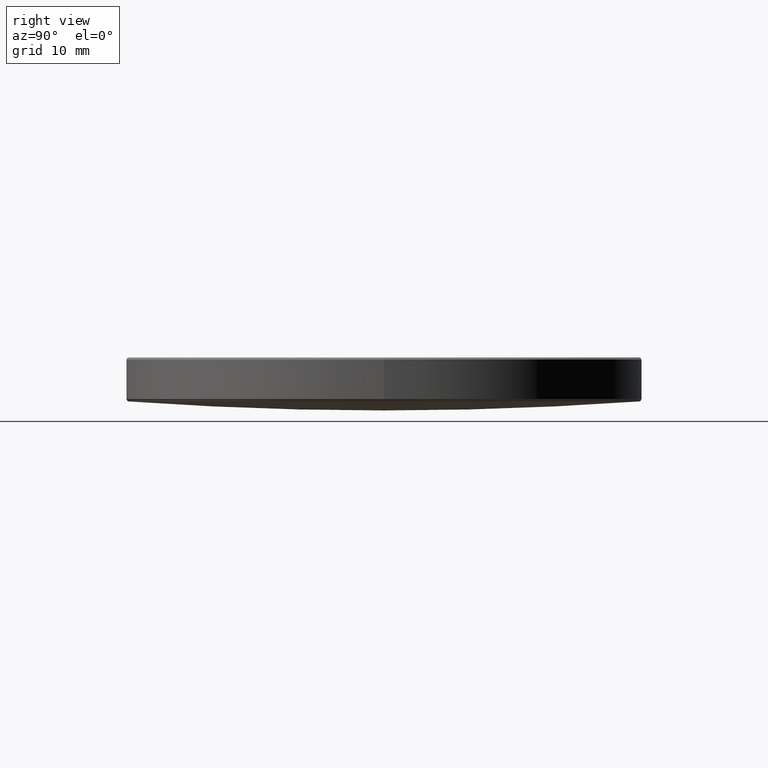
[diagram: clean part render]
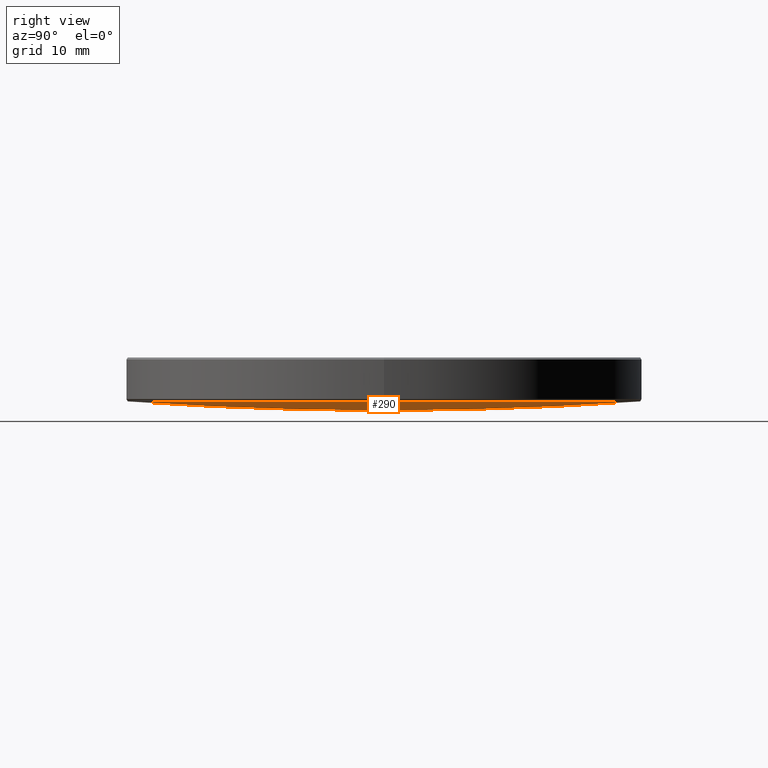
[diagram: same view with one face highlighted and labeled with its STEP entity id]
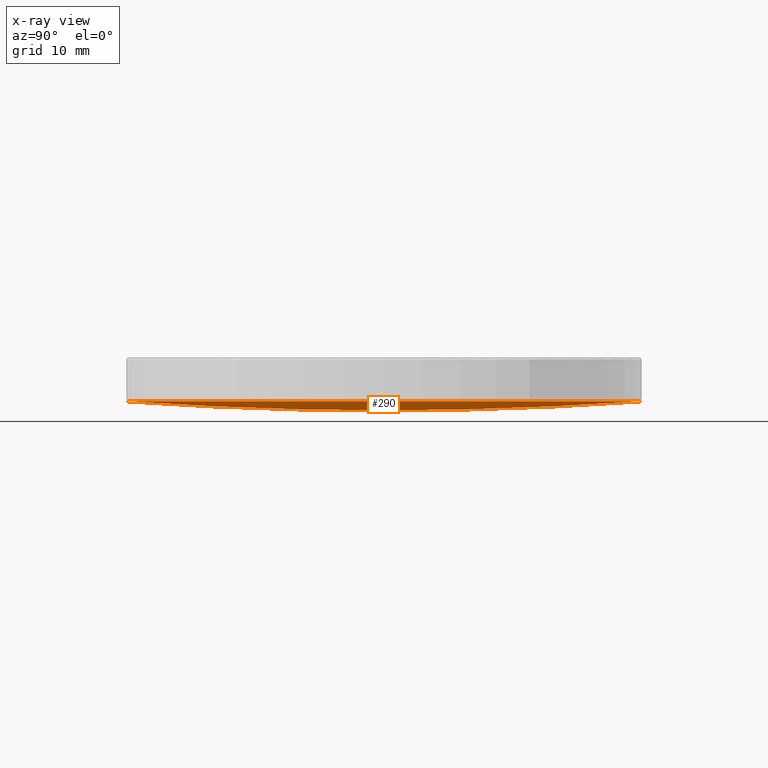
[diagram: x-ray of the same camera — body ghosted, the highlighted face saturated]
A machine part, right view. The second image highlights one B-rep face of the part: STEP entity #290.
The next image is the same camera in x-ray: the body ghosted, the highlighted face saturated — about 0% of this face is hidden behind the body in this view.
In plain terms, the highlighted spherical surface has radius 356.69 mm.
Its self-contained STEP definition (entity closure, byte-faithful):
#10 = ORIENTED_EDGE ( 'NONE', *, *, #301, .T. ) ;
#19 = CIRCLE ( 'NONE', #194, 356.6899999999999977 ) ;
#23 = AXIS2_PLACEMENT_3D ( 'NONE', #257, #78, #50 ) ;
#26 = DIRECTION ( 'NONE',  ( 0.000000000000000000, 0.000000000000000000, -1.000000000000000000 ) ) ;
#29 = VERTEX_POINT ( 'NONE', #203 ) ;
#40 = CARTESIAN_POINT ( 'NONE',  ( 0.000000000000000000, 2.184096333939347168E-14, 12.09447984699951739 ) ) ;
#44 = DIRECTION ( 'NONE',  ( -1.000000000000000000, 0.000000000000000000, 0.000000000000000000 ) ) ;
#50 = DIRECTION ( 'NONE',  ( 1.000000000000000000, 0.000000000000000000, 0.000000000000000000 ) ) ;
#64 = VERTEX_POINT ( 'NONE', #274 ) ;
#73 = CARTESIAN_POINT ( 'NONE',  ( 0.000000000000000000, 0.000000000000000000, 368.7844798469995453 ) ) ;
#78 = DIRECTION ( 'NONE',  ( 0.000000000000000000, 0.000000000000000000, -1.000000000000000000 ) ) ;
#93 = AXIS2_PLACEMENT_3D ( 'NONE', #269, #44, #325 ) ;
#94 = EDGE_CURVE ( 'NONE', #235, #114, #270, .T. ) ;
#100 = CARTESIAN_POINT ( 'NONE',  ( 0.000000000000000000, 0.000000000000000000, 368.7844798469995453 ) ) ;
#114 = VERTEX_POINT ( 'NONE', #331 ) ;
#116 = DIRECTION ( 'NONE',  ( 1.000000000000000000, 0.000000000000000000, 0.000000000000000000 ) ) ;
#122 = ORIENTED_EDGE ( 'NONE', *, *, #94, .T. ) ;
#134 = AXIS2_PLACEMENT_3D ( 'NONE', #73, #277, #26 ) ;
#145 = ORIENTED_EDGE ( 'NONE', *, *, #244, .T. ) ;
#173 = CIRCLE ( 'NONE', #23, 25.20055964190958520 ) ;
#177 = SPHERICAL_SURFACE ( 'NONE', #93, 356.6899999999999977 ) ;
#194 = AXIS2_PLACEMENT_3D ( 'NONE', #100, #324, #249 ) ;
#197 = AXIS2_PLACEMENT_3D ( 'NONE', #314, #286, #116 ) ;
#203 = CARTESIAN_POINT ( 'NONE',  ( -3.086178470218615315E-15, -25.20055964190926545, 12.98581782909005788 ) ) ;
#226 = EDGE_LOOP ( 'NONE', ( #307, #122, #10, #145 ) ) ;
#235 = VERTEX_POINT ( 'NONE', #40 ) ;
#244 = EDGE_CURVE ( 'NONE', #64, #29, #272, .T. ) ;
#249 = DIRECTION ( 'NONE',  ( -1.224646799147353207E-16, -1.000000000000000000, 0.000000000000000000 ) ) ;
#257 = CARTESIAN_POINT ( 'NONE',  ( 0.000000000000000000, 0.000000000000000000, 12.98581782909002946 ) ) ;
#269 = CARTESIAN_POINT ( 'NONE',  ( 0.000000000000000000, 0.000000000000000000, 368.7844798469995453 ) ) ;
#270 = CIRCLE ( 'NONE', #134, 356.6899999999999977 ) ;
#271 = FACE_OUTER_BOUND ( 'NONE', #226, .T. ) ;
#272 = CIRCLE ( 'NONE', #197, 25.20055964190958520 ) ;
#274 = CARTESIAN_POINT ( 'NONE',  ( 25.20055964190958520, 0.000000000000000000, 12.98581782909002946 ) ) ;
#277 = DIRECTION ( 'NONE',  ( 1.000000000000000000, -0.000000000000000000, 0.000000000000000000 ) ) ;
#286 = DIRECTION ( 'NONE',  ( 0.000000000000000000, 0.000000000000000000, -1.000000000000000000 ) ) ;
#290 = ADVANCED_FACE ( 'NONE', ( #271 ), #177, .T. ) ;
#301 = EDGE_CURVE ( 'NONE', #114, #64, #173, .T. ) ;
#307 = ORIENTED_EDGE ( 'NONE', *, *, #320, .F. ) ;
#314 = CARTESIAN_POINT ( 'NONE',  ( 0.000000000000000000, 0.000000000000000000, 12.98581782909002946 ) ) ;
#320 = EDGE_CURVE ( 'NONE', #235, #29, #19, .T. ) ;
#324 = DIRECTION ( 'NONE',  ( -1.000000000000000000, 1.224646799147353207E-16, 0.000000000000000000 ) ) ;
#325 = DIRECTION ( 'NONE',  ( 0.000000000000000000, 1.000000000000000000, 0.000000000000000000 ) ) ;
#331 = CARTESIAN_POINT ( 'NONE',  ( 0.000000000000000000, 25.20055964190926545, 12.98581782909005788 ) ) ;